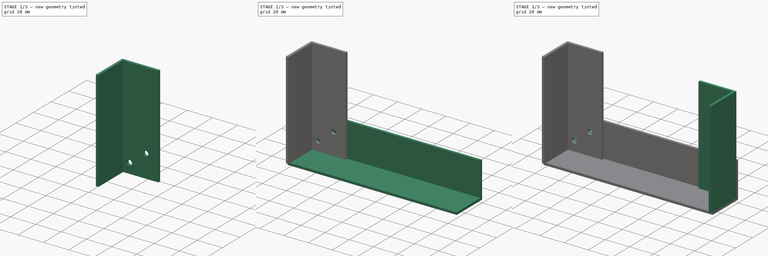
[diagram: build sequence overview — one tinted view per stage of 3, left to right]
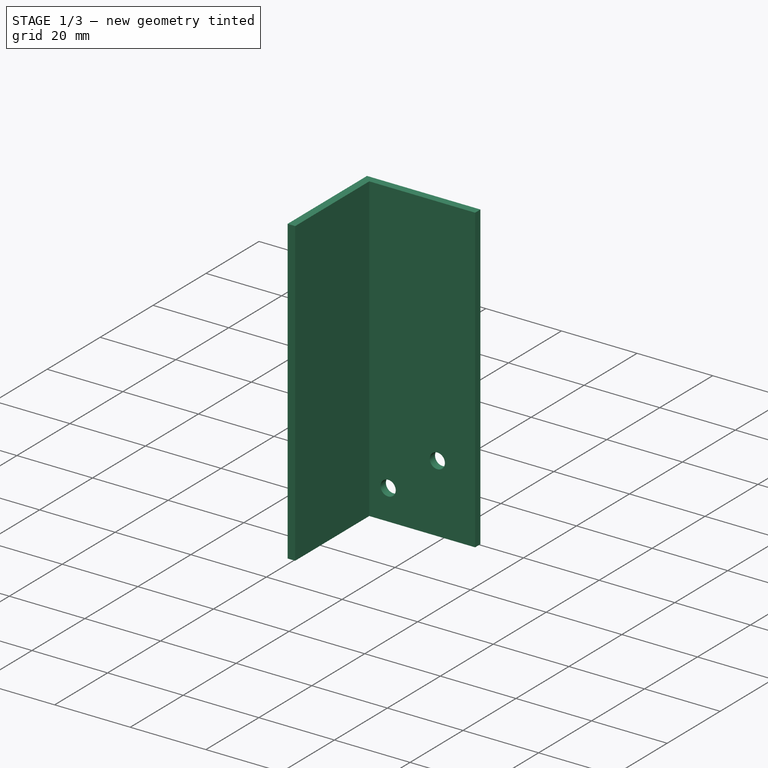
[diagram: stage 1 of 3 — iso view after this stage's code; geometry added in this stage tinted green]
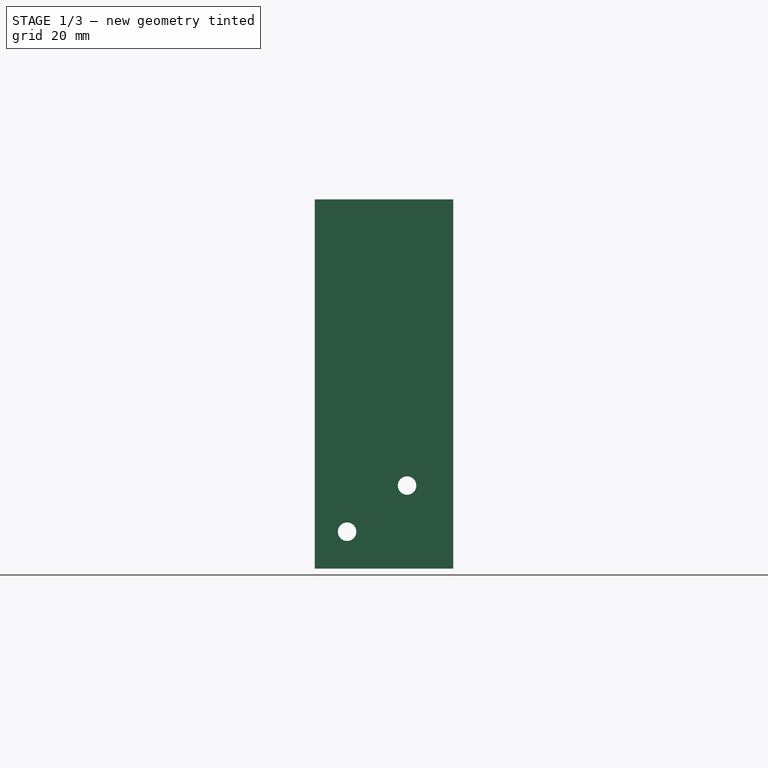
[diagram: stage 1 of 3 — front view after this stage's code; geometry added in this stage tinted green]
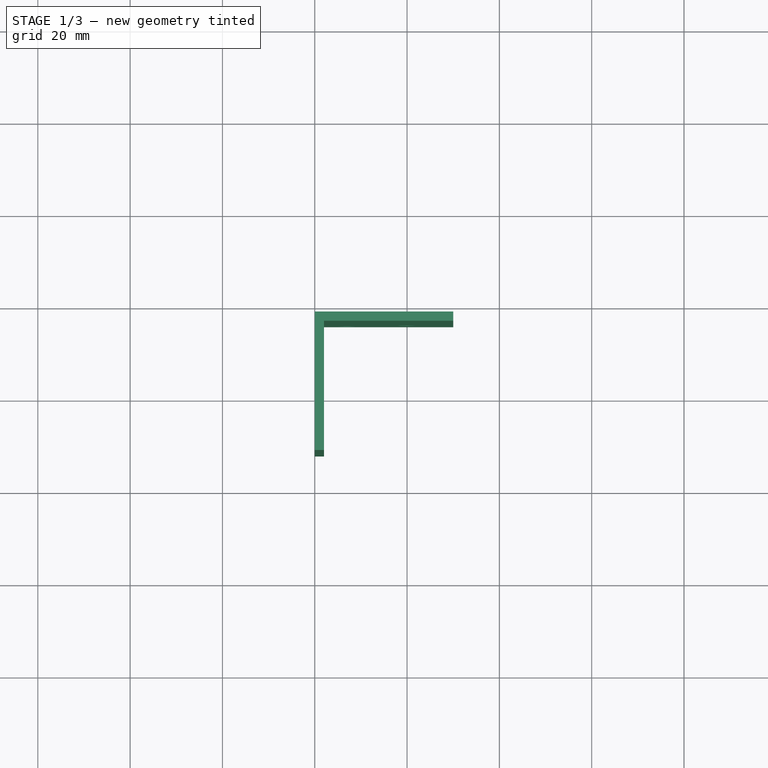
[diagram: stage 1 of 3 — top view after this stage's code; geometry added in this stage tinted green]
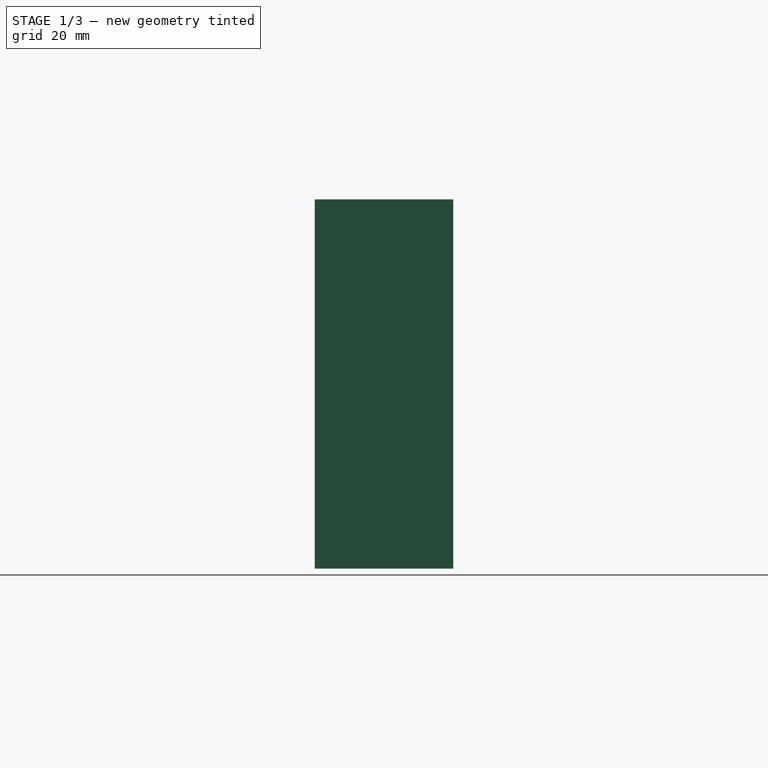
[diagram: stage 1 of 3 — right view after this stage's code; geometry added in this stage tinted green]
FCSTD DOCUMENT  (FreeCAD 0.14R$WCREV$)
Label: Chassis
License: CC-BY 3.0
LicenseURL: http://creativecommons.org/licenses/by/3.0/
objects: Sketcher::SketchObject×5, PartDesign::Pad×3, PartDesign::Pocket×2, App::DocumentObjectGroup×1
note: 15 computed .brp shape members not serialized (recipe doc carries the construction recipe); baked Part::Feature solids carry a one-line shape summary decoded from their .brp

FEATURE [Sketcher::SketchObject] Sketch002  label="AluRod_90deg_30x30x004"
  Placement = pos=(0,-2,2) rot=(0,0,1;3.14159rad)
  sketch-geometry (6):
    g0: LineSegment StartX=0 StartY=0 StartZ=0 EndX=0 EndY=30 EndZ=0
    g1: LineSegment StartX=0 StartY=0 StartZ=0 EndX=-30 EndY=0 EndZ=0
    g2: LineSegment StartX=-30 StartY=0 StartZ=0 EndX=-30 EndY=2 EndZ=0
    g3: LineSegment StartX=0 StartY=30 StartZ=0 EndX=-2 EndY=30 EndZ=0
    g4: LineSegment StartX=-2 StartY=30 StartZ=0 EndX=-2 EndY=2 EndZ=0
    g5: LineSegment StartX=-30 StartY=2 StartZ=0 EndX=-2 EndY=2 EndZ=0
  constraints (17):
    c: Coincident(g0,g-1)
    c: DistanceY(g0) = 30
    c: Coincident(g1,g-1)
    c: Horizontal(g1)
    c: DistanceX(g1) = -30
    c: Coincident(g2,g1)
    c: Vertical(g2)
    c: Coincident(g3,g0)
    c: Horizontal(g3)
    c: Coincident(g4,g3)
    c: Vertical(g4)
    c: Coincident(g5,g2)
    c: Coincident(g5,g4)
    c: Horizontal(g5)
    c: DistanceX(g3) = -2
    c: DistanceY(g2) = 2
    c: Vertical(g0)
FEATURE [PartDesign::Pad] Pad002
  Length = 80
  Length2 = 100
  Placement = pos=(0,-2,2) rot=(0,0,1;3.14159rad)
  Sketch = -> Sketch002
  Type = 0
FEATURE [App::DocumentObjectGroup] Group  label="HorizontalRod"
  Group = -> [Pad,Pocket]
FEATURE [Sketcher::SketchObject] Sketch005
  ExternalGeometry = -> [Pad002]
  Placement = pos=(0,-2,2) rot=(0,0.707107,0.707107;3.14159rad)
  Support = -> Pad002 [Face6]
  sketch-geometry (2):
    g0: Circle CenterX=-7 CenterY=8 CenterZ=0 NormalX=0 NormalY=0 NormalZ=1 Radius=2
    g1: Circle CenterX=-20 CenterY=18 CenterZ=0 NormalX=0 NormalY=0 NormalZ=1 Radius=2
  constraints (6):
    c: DistanceX(g-1,g0) = -7
    c: DistanceY(g-1,g0) = 8
    c: Radius(g0) = 2
    c: DistanceX(g-1,g1) = -20
    c: DistanceY(g-1,g1) = 18
    c: Radius(g1) = 2
FEATURE [PartDesign::Pocket] Pocket001
  Length = 5
  Placement = pos=(0,-2,2) rot=(0,0,1;3.14159rad)
  Sketch = -> Sketch005
  Type = 1
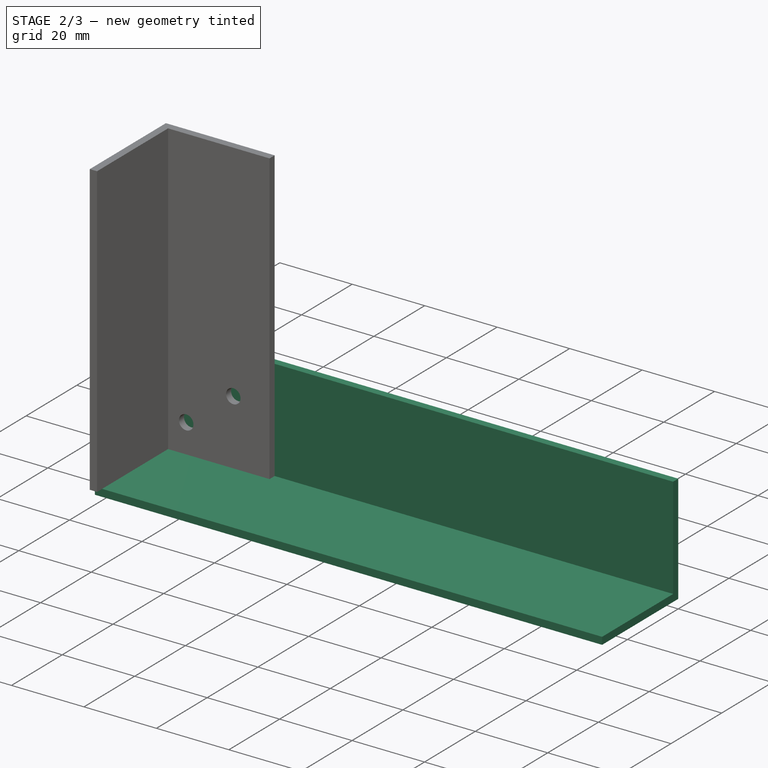
[diagram: stage 2 of 3 — iso view after this stage's code; geometry added in this stage tinted green]
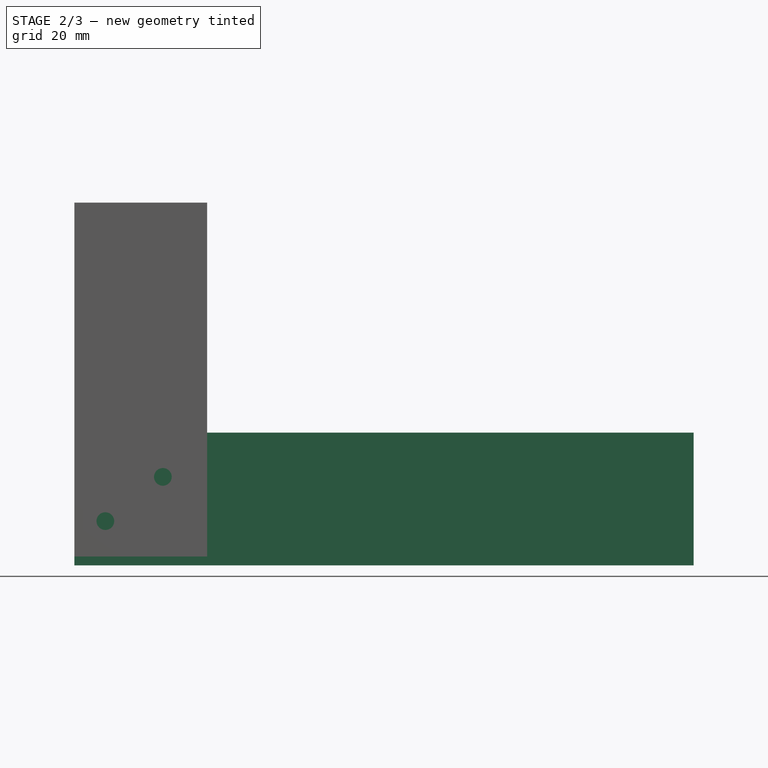
[diagram: stage 2 of 3 — front view after this stage's code; geometry added in this stage tinted green]
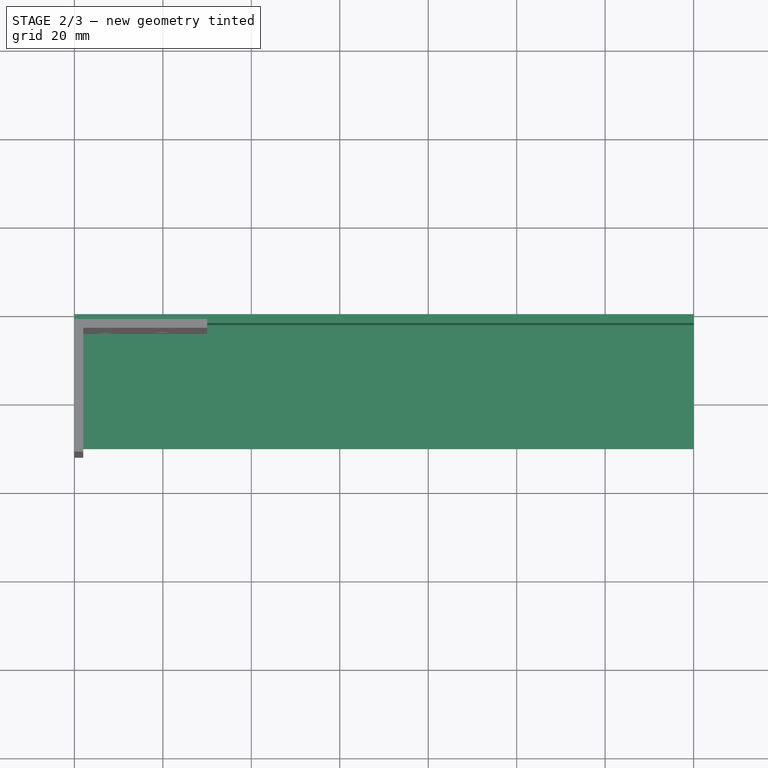
[diagram: stage 2 of 3 — top view after this stage's code; geometry added in this stage tinted green]
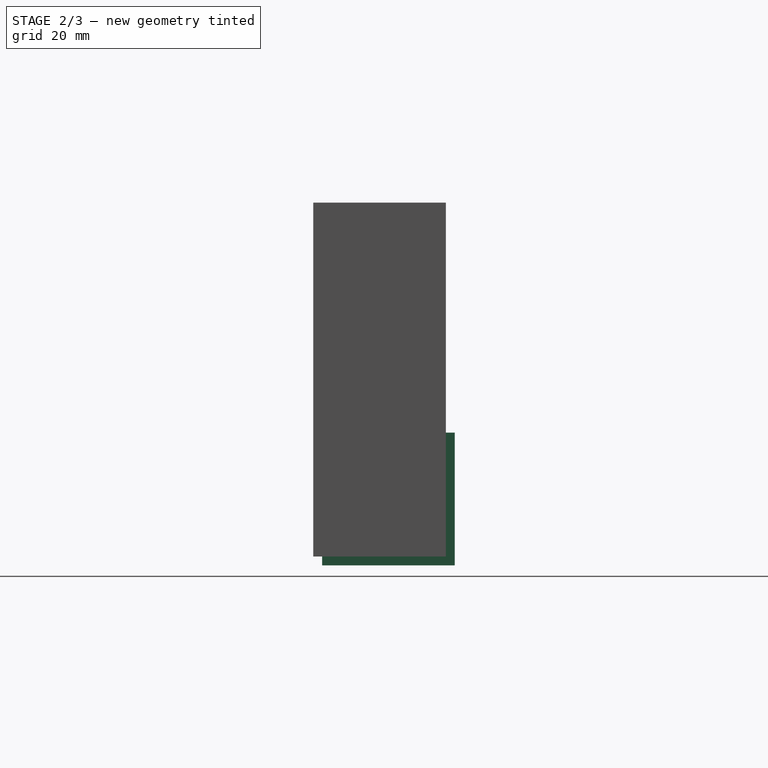
[diagram: stage 2 of 3 — right view after this stage's code; geometry added in this stage tinted green]
FEATURE [Sketcher::SketchObject] Sketch  label="AluRod_90deg_30x30x2"
  Placement = pos=(0,0,0) rot=(0.57735,0.57735,0.57735;2.0944rad)
  sketch-geometry (6):
    g0: LineSegment StartX=0 StartY=0 StartZ=0 EndX=0 EndY=30 EndZ=0
    g1: LineSegment StartX=0 StartY=0 StartZ=0 EndX=-30 EndY=0 EndZ=0
    g2: LineSegment StartX=-30 StartY=0 StartZ=0 EndX=-30 EndY=2 EndZ=0
    g3: LineSegment StartX=0 StartY=30 StartZ=0 EndX=-2 EndY=30 EndZ=0
    g4: LineSegment StartX=-2 StartY=30 StartZ=0 EndX=-2 EndY=2 EndZ=0
    g5: LineSegment StartX=-30 StartY=2 StartZ=0 EndX=-2 EndY=2 EndZ=0
  constraints (17):
    c: Coincident(g0,g-1)
    c: DistanceY(g0) = 30
    c: Coincident(g1,g-1)
    c: Horizontal(g1)
    c: DistanceX(g1) = -30
    c: Coincident(g2,g1)
    c: Vertical(g2)
    c: Coincident(g3,g0)
    c: Horizontal(g3)
    c: Coincident(g4,g3)
    c: Vertical(g4)
    c: Coincident(g5,g2)
    c: Coincident(g5,g4)
    c: Horizontal(g5)
    c: DistanceX(g3) = -2
    c: DistanceY(g2) = 2
    c: Vertical(g0)
FEATURE [PartDesign::Pad] Pad  label="AluRod_90deg_30x30x140x2"
  Length = 140
  Length2 = 100
  Placement = pos=(0,0,0) rot=(0.57735,0.57735,0.57735;2.0944rad)
  Sketch = -> Sketch
  Type = 0
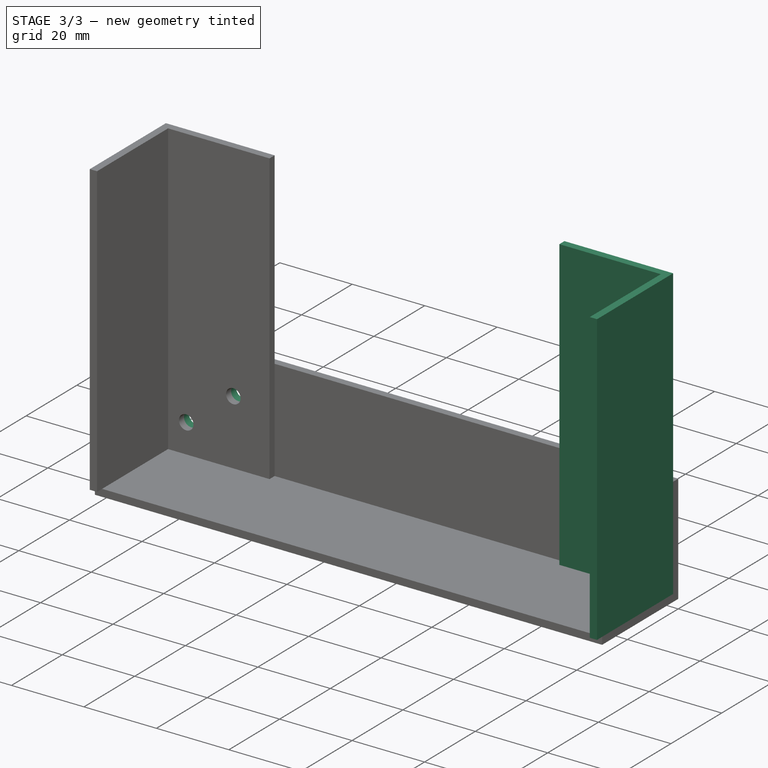
[diagram: stage 3 of 3 — iso view after this stage's code; geometry added in this stage tinted green]
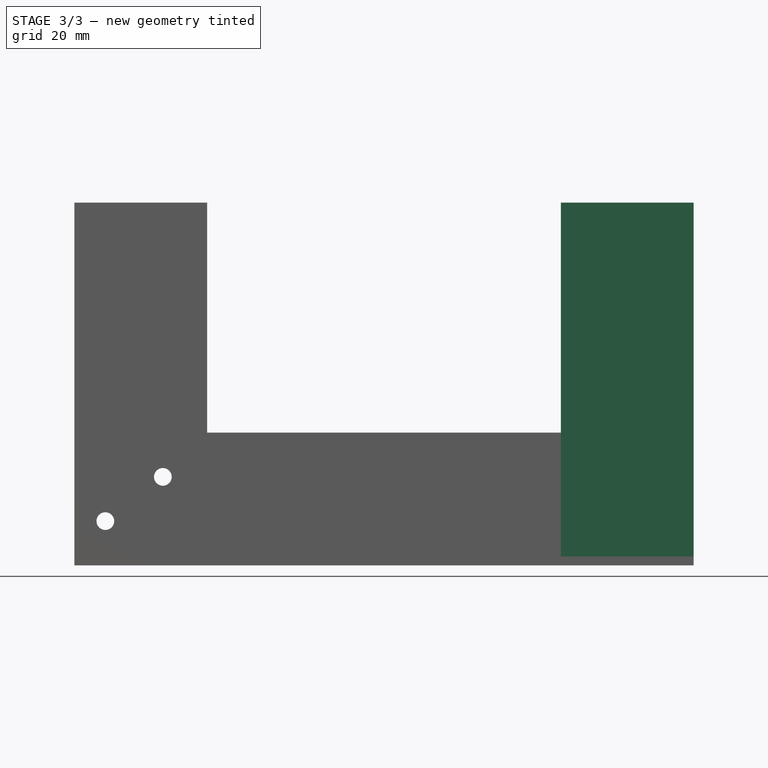
[diagram: stage 3 of 3 — front view after this stage's code; geometry added in this stage tinted green]
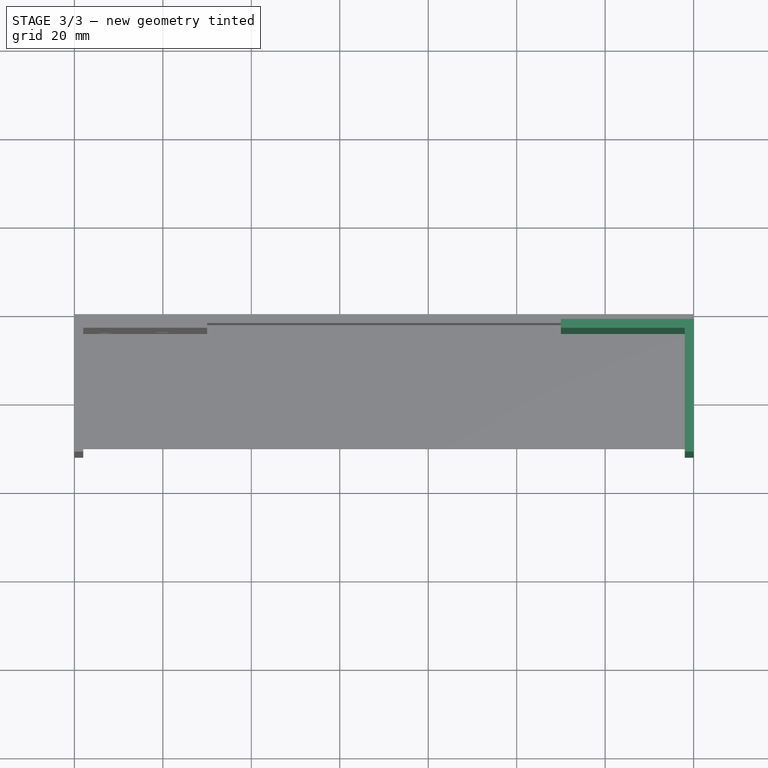
[diagram: stage 3 of 3 — top view after this stage's code; geometry added in this stage tinted green]
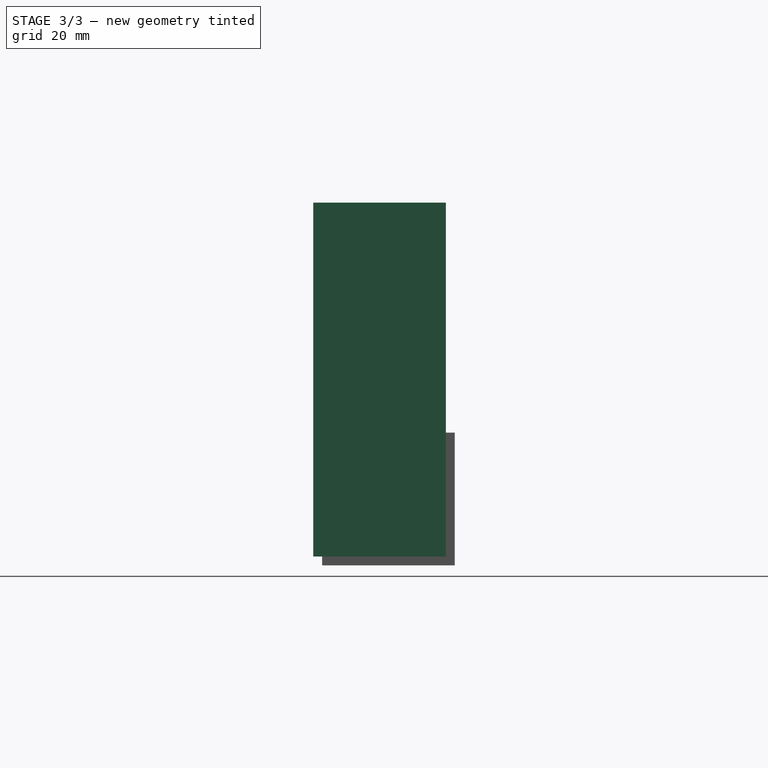
[diagram: stage 3 of 3 — right view after this stage's code; geometry added in this stage tinted green]
FEATURE [Sketcher::SketchObject] Sketch001  label="AluRod_90deg_30x30x003"
  Placement = pos=(140,-2,2) rot=(0,0,1;1.5708rad)
  sketch-geometry (6):
    g0: LineSegment StartX=0 StartY=0 StartZ=0 EndX=0 EndY=30 EndZ=0
    g1: LineSegment StartX=0 StartY=0 StartZ=0 EndX=-30 EndY=0 EndZ=0
    g2: LineSegment StartX=-30 StartY=0 StartZ=0 EndX=-30 EndY=2 EndZ=0
    g3: LineSegment StartX=0 StartY=30 StartZ=0 EndX=-2 EndY=30 EndZ=0
    g4: LineSegment StartX=-2 StartY=30 StartZ=0 EndX=-2 EndY=2 EndZ=0
    g5: LineSegment StartX=-30 StartY=2 StartZ=0 EndX=-2 EndY=2 EndZ=0
  constraints (17):
    c: Coincident(g0,g-1)
    c: DistanceY(g0) = 30
    c: Coincident(g1,g-1)
    c: Horizontal(g1)
    c: DistanceX(g1) = -30
    c: Coincident(g2,g1)
    c: Vertical(g2)
    c: Coincident(g3,g0)
    c: Horizontal(g3)
    c: Coincident(g4,g3)
    c: Vertical(g4)
    c: Coincident(g5,g2)
    c: Coincident(g5,g4)
    c: Horizontal(g5)
    c: DistanceX(g3) = -2
    c: DistanceY(g2) = 2
    c: Vertical(g0)
FEATURE [PartDesign::Pad] Pad001
  Length = 80
  Length2 = 100
  Placement = pos=(140,-2,2) rot=(0,0,1;1.5708rad)
  Sketch = -> Sketch001
  Type = 0
FEATURE [Sketcher::SketchObject] Sketch004
  Placement = pos=(0,0,0) rot=(0.57735,0.57735,0.57735;4.18879rad)
  Support = -> Pad [Face1]
  sketch-geometry (4):
    g0: Circle CenterX=20 CenterY=20 CenterZ=0 NormalX=0 NormalY=0 NormalZ=1 Radius=2
    g1: Circle CenterX=10 CenterY=7 CenterZ=0 NormalX=0 NormalY=0 NormalZ=1 Radius=2
    g2: Circle CenterX=10 CenterY=133 CenterZ=0 NormalX=0 NormalY=0 NormalZ=1 Radius=2
    g3: Circle CenterX=20 CenterY=120 CenterZ=0 NormalX=0 NormalY=0 NormalZ=1 Radius=2
  constraints (8):
    c: DistanceX(g-1,g0) = 20
    c: DistanceY(g-1,g0) = 20
    c: Radius(g0) = 2
    c: DistanceX(g-1,g1) = 10
    c: DistanceY(g-1,g1) = 7
    c: Radius(g1) = 2
    c: Radius(g2) = 2
    c: Radius(g3) = 2
FEATURE [PartDesign::Pocket] Pocket
  Length = 5
  Placement = pos=(0,0,0) rot=(0.57735,0.57735,0.57735;2.0944rad)
  Sketch = -> Sketch004
  Type = 1
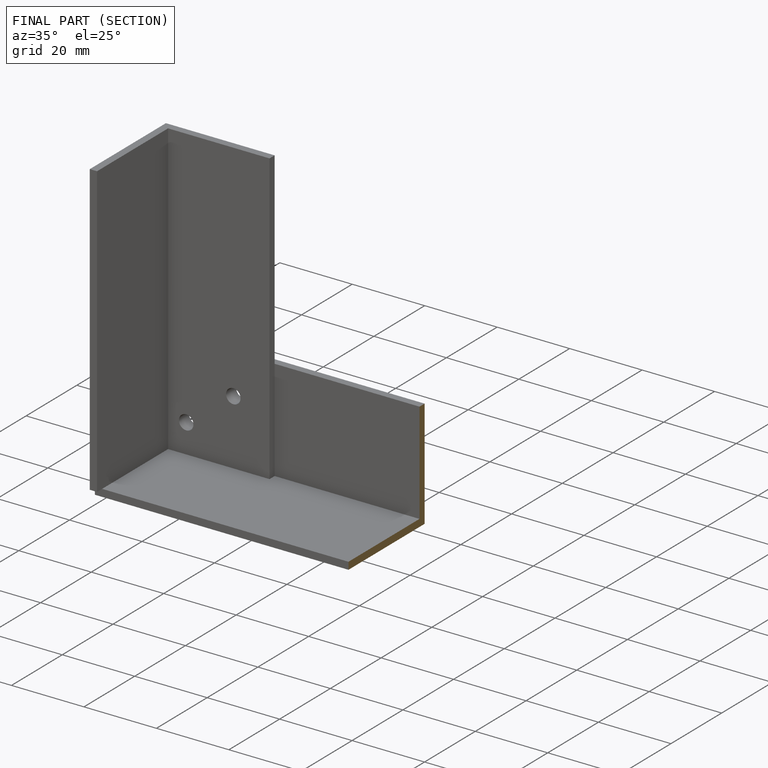
[diagram: finished part — half-section view (interior)]
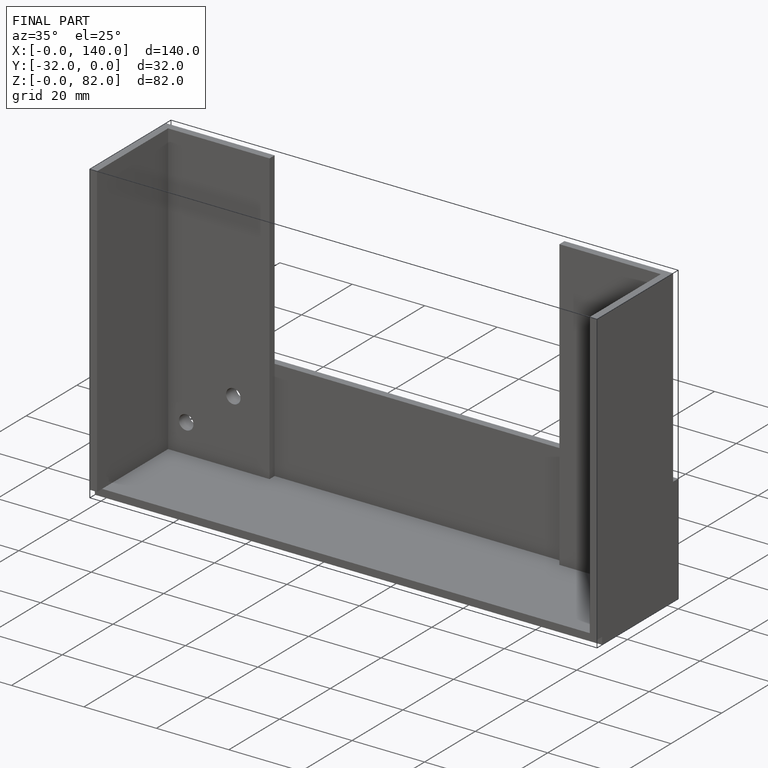
[diagram: finished part — iso view with bounding-box wireframe]
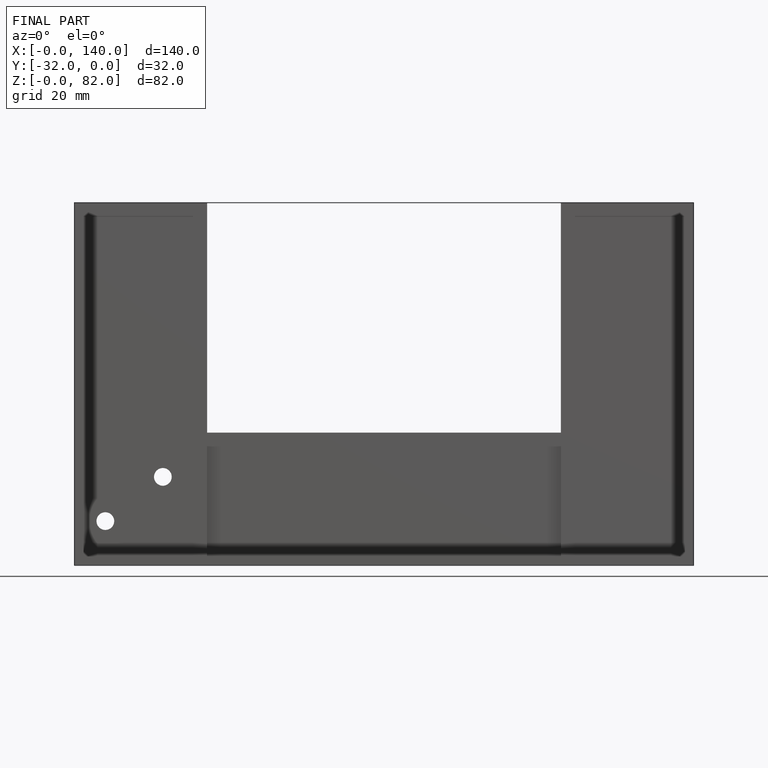
[diagram: finished part — front view with bounding-box wireframe]
